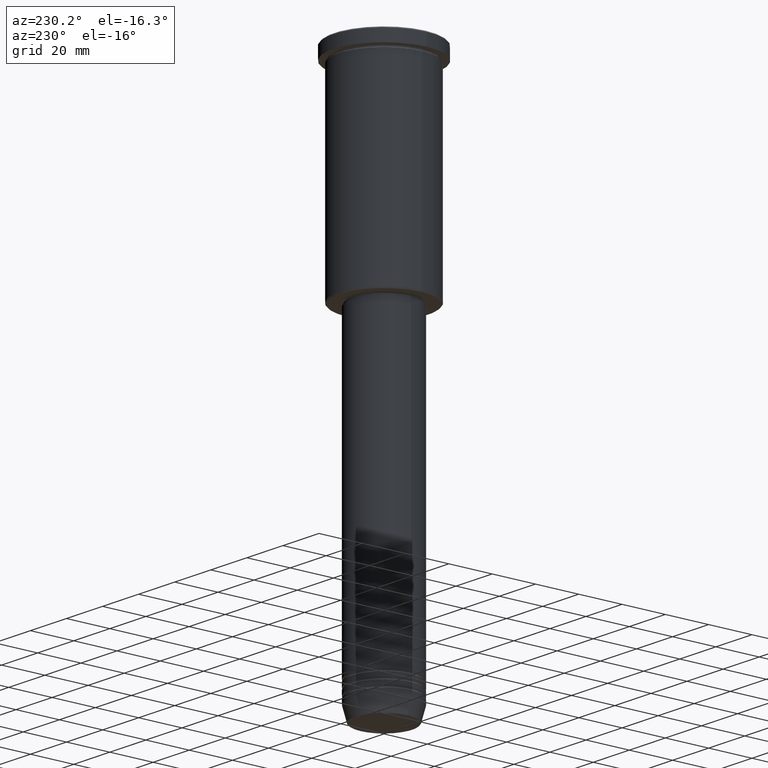
[diagram: clean part render]
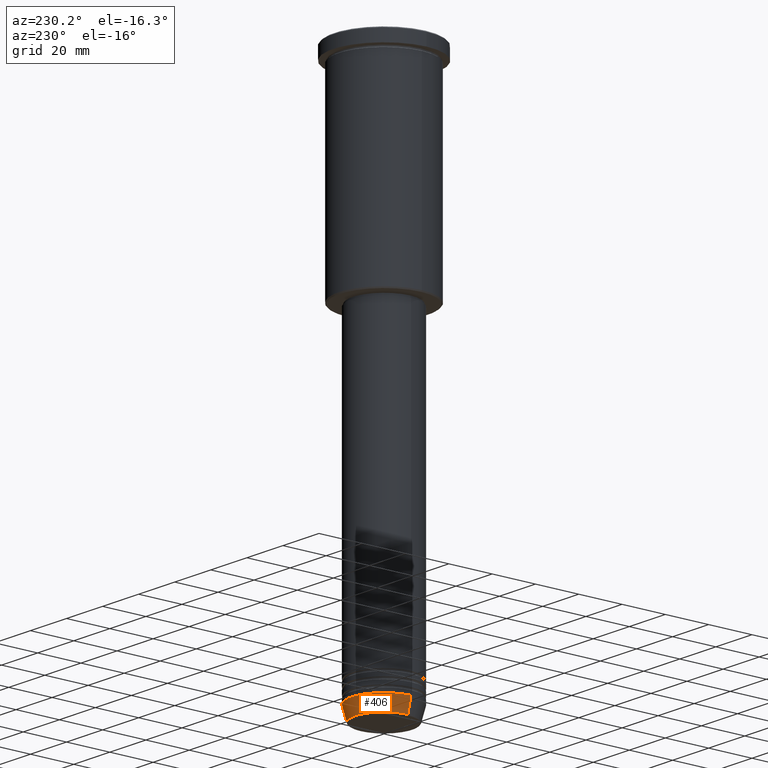
[diagram: same view with one face highlighted and labeled with its STEP entity id]
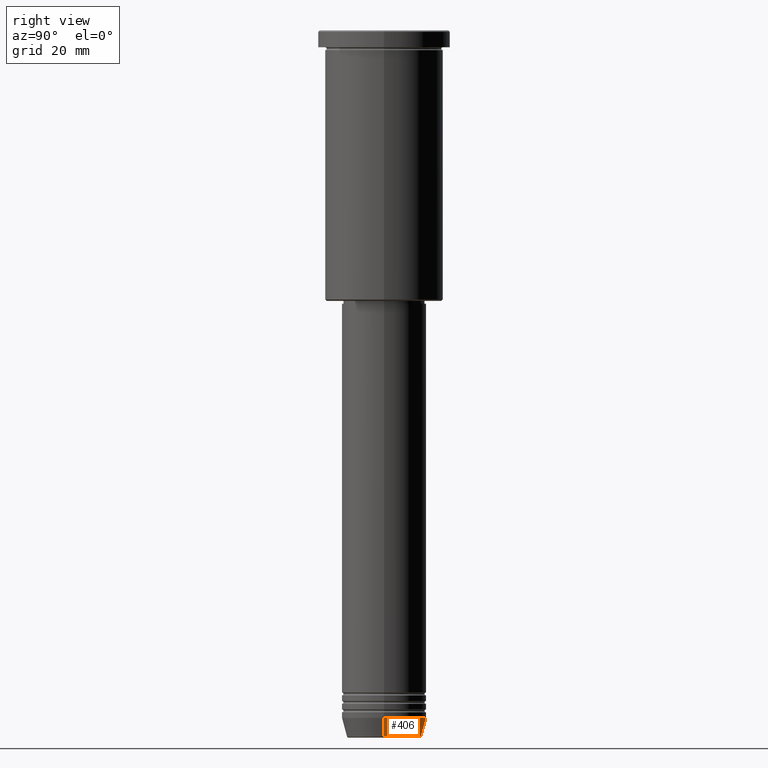
[diagram: same view with one face highlighted and labeled with its STEP entity id]
A machine part, auxiliary view. The second image highlights one B-rep face of the part: STEP entity #406.
A second angle (right view) of the same face is appended — the face is thin or edge-on in the first view.
In plain terms, the highlighted conical surface has half-angle 15 deg.
Its self-contained STEP definition (entity closure, byte-faithful):
#8 = CARTESIAN_POINT ( 'NONE',  ( 15.00000000000000000, 0.000000000000000000, -244.0000000000000284 ) ) ;
#17 = CIRCLE ( 'NONE', #575, 15.00000000000000000 ) ;
#53 = ORIENTED_EDGE ( 'NONE', *, *, #656, .F. ) ;
#69 = DIRECTION ( 'NONE',  ( -0.000000000000000000, -0.000000000000000000, 1.000000000000000000 ) ) ;
#102 = DIRECTION ( 'NONE',  ( -0.2588190451025213501, 3.169619151431772337E-17, 0.9659258262890680902 ) ) ;
#122 = ORIENTED_EDGE ( 'NONE', *, *, #804, .T. ) ;
#130 = CARTESIAN_POINT ( 'NONE',  ( 13.22365507213719305, 0.000000000000000000, -250.6294095225512422 ) ) ;
#188 = VECTOR ( 'NONE', #931, 1000.000000000000000 ) ;
#275 = LINE ( 'NONE', #8, #188 ) ;
#284 = CARTESIAN_POINT ( 'NONE',  ( -15.00000000000000000, 1.836970198721029589E-15, -244.0000000000000284 ) ) ;
#329 = CIRCLE ( 'NONE', #768, 13.22365507213719305 ) ;
#363 = FACE_OUTER_BOUND ( 'NONE', #867, .T. ) ;
#406 = ADVANCED_FACE ( 'NONE', ( #363 ), #972, .T. ) ;
#427 = DIRECTION ( 'NONE',  ( 1.000000000000000000, 0.000000000000000000, 0.000000000000000000 ) ) ;
#460 = EDGE_CURVE ( 'NONE', #893, #736, #329, .T. ) ;
#490 = ORIENTED_EDGE ( 'NONE', *, *, #460, .T. ) ;
#506 = CARTESIAN_POINT ( 'NONE',  ( 0.000000000000000000, 0.000000000000000000, -244.0000000000000284 ) ) ;
#552 = LINE ( 'NONE', #284, #752 ) ;
#575 = AXIS2_PLACEMENT_3D ( 'NONE', #506, #789, #427 ) ;
#583 = DIRECTION ( 'NONE',  ( -0.000000000000000000, -0.000000000000000000, 1.000000000000000000 ) ) ;
#656 = EDGE_CURVE ( 'NONE', #844, #681, #17, .T. ) ;
#663 = DIRECTION ( 'NONE',  ( 1.000000000000000000, 0.000000000000000000, 0.000000000000000000 ) ) ;
#681 = VERTEX_POINT ( 'NONE', #910 ) ;
#702 = CARTESIAN_POINT ( 'NONE',  ( 15.00000000000000000, 0.000000000000000000, -244.0000000000000284 ) ) ;
#718 = CARTESIAN_POINT ( 'NONE',  ( 0.000000000000000000, 0.000000000000000000, -250.6294095225512422 ) ) ;
#726 = CARTESIAN_POINT ( 'NONE',  ( 0.000000000000000000, 0.000000000000000000, -244.0000000000000284 ) ) ;
#736 = VERTEX_POINT ( 'NONE', #1050 ) ;
#752 = VECTOR ( 'NONE', #102, 1000.000000000000000 ) ;
#768 = AXIS2_PLACEMENT_3D ( 'NONE', #718, #69, #890 ) ;
#789 = DIRECTION ( 'NONE',  ( -0.000000000000000000, -0.000000000000000000, 1.000000000000000000 ) ) ;
#804 = EDGE_CURVE ( 'NONE', #736, #681, #552, .T. ) ;
#844 = VERTEX_POINT ( 'NONE', #702 ) ;
#858 = EDGE_CURVE ( 'NONE', #893, #844, #275, .T. ) ;
#867 = EDGE_LOOP ( 'NONE', ( #490, #122, #53, #1007 ) ) ;
#884 = AXIS2_PLACEMENT_3D ( 'NONE', #726, #583, #663 ) ;
#890 = DIRECTION ( 'NONE',  ( 1.000000000000000000, 0.000000000000000000, 0.000000000000000000 ) ) ;
#893 = VERTEX_POINT ( 'NONE', #130 ) ;
#910 = CARTESIAN_POINT ( 'NONE',  ( -15.00000000000000000, 1.836970198721029589E-15, -244.0000000000000284 ) ) ;
#931 = DIRECTION ( 'NONE',  ( 0.2588190451025213501, 0.000000000000000000, 0.9659258262890680902 ) ) ;
#972 = CONICAL_SURFACE ( 'NONE', #884, 15.00000000000000000, 0.2617993877991500740 ) ;
#1007 = ORIENTED_EDGE ( 'NONE', *, *, #858, .F. ) ;
#1050 = CARTESIAN_POINT ( 'NONE',  ( -13.22365507213719305, 1.728200442216588583E-15, -250.6294095225512422 ) ) ;